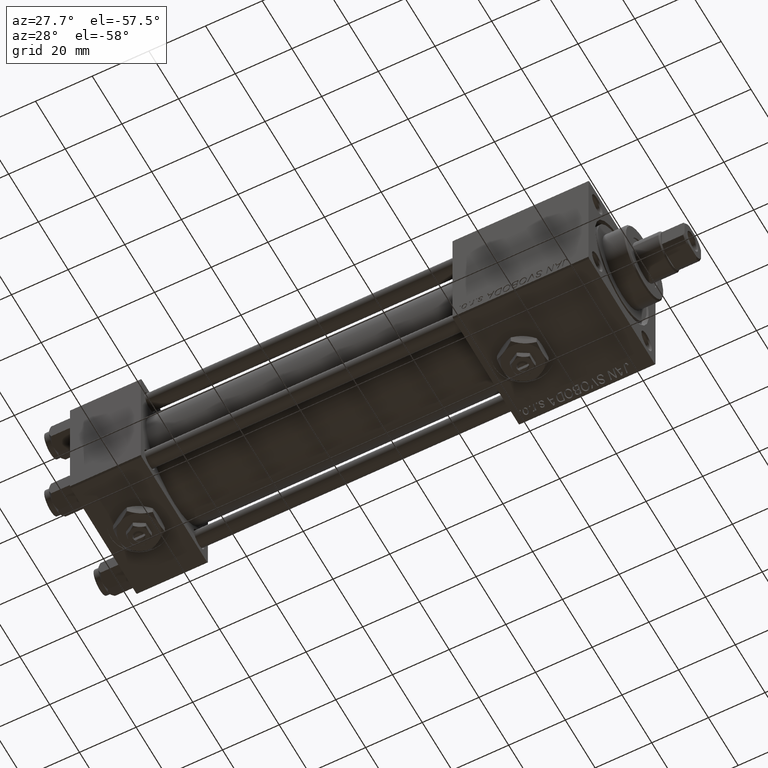
[diagram: clean part render]
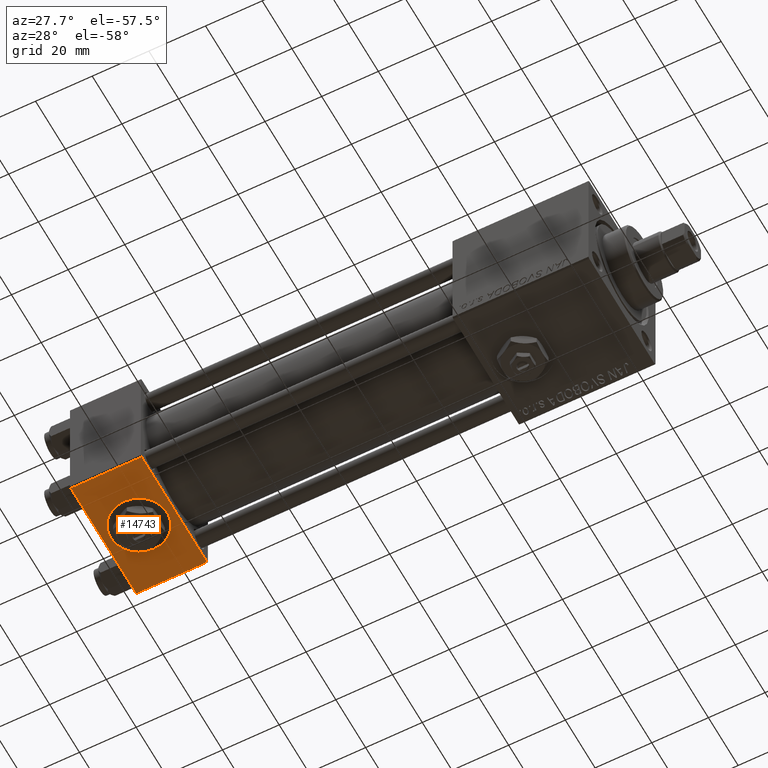
[diagram: same view with one face highlighted and labeled with its STEP entity id]
A machine part, auxiliary view. The second image highlights one B-rep face of the part: STEP entity #14743.
In plain terms, the highlighted planar face has unit normal (0, 0, -1).
Its self-contained STEP definition (entity closure, byte-faithful):
#96 = VERTEX_POINT ( 'NONE', #29479 ) ;
#1832 = DIRECTION ( 'NONE',  ( 0.000000000000000000, -1.734723475976806848E-16, -1.000000000000000000 ) ) ;
#1985 = DIRECTION ( 'NONE',  ( 0.000000000000000000, 2.312964634635742957E-16, -1.000000000000000000 ) ) ;
#4745 = DIRECTION ( 'NONE',  ( 0.000000000000000000, -1.000000000000000000, -2.312964634635742957E-16 ) ) ;
#5355 = ORIENTED_EDGE ( 'NONE', *, *, #8865, .F. ) ;
#5787 = CARTESIAN_POINT ( 'NONE',  ( 12.50000000000000178, 3.566060716959379104E-15, -22.50000000000000000 ) ) ;
#5894 = EDGE_LOOP ( 'NONE', ( #6714, #41633, #34735, #12219 ) ) ;
#5938 = FACE_OUTER_BOUND ( 'NONE', #5894, .T. ) ;
#6673 = CARTESIAN_POINT ( 'NONE',  ( 25.00000000000000000, -21.99999999999997158, -22.50000000000000711 ) ) ;
#6714 = ORIENTED_EDGE ( 'NONE', *, *, #19933, .F. ) ;
#6991 = DIRECTION ( 'NONE',  ( 0.000000000000000000, 1.000000000000000000, 2.312964634635742957E-16 ) ) ;
#8098 = CARTESIAN_POINT ( 'NONE',  ( 0.000000000000000000, 21.99999999999999289, -22.49999999999999645 ) ) ;
#8865 = EDGE_CURVE ( 'NONE', #18137, #46478, #11472, .T. ) ;
#10084 = CARTESIAN_POINT ( 'NONE',  ( 25.00000000000000000, 21.99999999999999289, -22.49999999999999645 ) ) ;
#10412 = PLANE ( 'NONE',  #48773 ) ;
#10759 = VECTOR ( 'NONE', #43990, 1000.000000000000000 ) ;
#10932 = CARTESIAN_POINT ( 'NONE',  ( 25.00000000000000000, 22.50000000000000000, -22.49999999999999645 ) ) ;
#11472 = CIRCLE ( 'NONE', #19920, 10.00000000000000178 ) ;
#12219 = ORIENTED_EDGE ( 'NONE', *, *, #12557, .T. ) ;
#12557 = EDGE_CURVE ( 'NONE', #24839, #96, #13047, .T. ) ;
#13047 = LINE ( 'NONE', #40296, #10759 ) ;
#13815 = VERTEX_POINT ( 'NONE', #10084 ) ;
#14743 = ADVANCED_FACE ( 'NONE', ( #34713, #5938 ), #10412, .T. ) ;
#16134 = ORIENTED_EDGE ( 'NONE', *, *, #22496, .F. ) ;
#17909 = DIRECTION ( 'NONE',  ( 0.000000000000000000, 1.000000000000000000, 0.000000000000000000 ) ) ;
#18137 = VERTEX_POINT ( 'NONE', #39237 ) ;
#19920 = AXIS2_PLACEMENT_3D ( 'NONE', #37890, #50817, #42121 ) ;
#19933 = EDGE_CURVE ( 'NONE', #26747, #96, #33785, .T. ) ;
#22464 = EDGE_CURVE ( 'NONE', #13815, #24839, #30602, .T. ) ;
#22496 = EDGE_CURVE ( 'NONE', #46478, #18137, #52027, .T. ) ;
#24839 = VERTEX_POINT ( 'NONE', #6673 ) ;
#25432 = CARTESIAN_POINT ( 'NONE',  ( 25.00000000000000000, 21.99999999999999289, -22.49999999999999645 ) ) ;
#26747 = VERTEX_POINT ( 'NONE', #8098 ) ;
#29479 = CARTESIAN_POINT ( 'NONE',  ( 0.000000000000000000, -21.99999999999997158, -22.50000000000000711 ) ) ;
#30602 = LINE ( 'NONE', #34552, #36016 ) ;
#31802 = AXIS2_PLACEMENT_3D ( 'NONE', #5787, #1832, #17909 ) ;
#33785 = LINE ( 'NONE', #45150, #46981 ) ;
#34389 = DIRECTION ( 'NONE',  ( 1.000000000000000000, 0.000000000000000000, 0.000000000000000000 ) ) ;
#34552 = CARTESIAN_POINT ( 'NONE',  ( 25.00000000000000000, 22.50000000000000000, -22.49999999999999645 ) ) ;
#34713 = FACE_BOUND ( 'NONE', #44346, .T. ) ;
#34735 = ORIENTED_EDGE ( 'NONE', *, *, #22464, .T. ) ;
#36016 = VECTOR ( 'NONE', #38517, 1000.000000000000000 ) ;
#37890 = CARTESIAN_POINT ( 'NONE',  ( 12.50000000000000178, 3.566060716959379104E-15, -22.50000000000000000 ) ) ;
#38104 = CARTESIAN_POINT ( 'NONE',  ( 12.50000000000000355, -9.999999999999998224, -22.50000000000000000 ) ) ;
#38517 = DIRECTION ( 'NONE',  ( 0.000000000000000000, -1.000000000000000000, -2.312964634635742957E-16 ) ) ;
#38618 = LINE ( 'NONE', #25432, #47158 ) ;
#39237 = CARTESIAN_POINT ( 'NONE',  ( 12.50000000000000178, 10.00000000000000533, -22.50000000000000000 ) ) ;
#40296 = CARTESIAN_POINT ( 'NONE',  ( 0.000000000000000000, -21.99999999999998579, -22.50000000000000711 ) ) ;
#41633 = ORIENTED_EDGE ( 'NONE', *, *, #46437, .T. ) ;
#42121 = DIRECTION ( 'NONE',  ( 0.000000000000000000, 1.000000000000000000, 0.000000000000000000 ) ) ;
#43990 = DIRECTION ( 'NONE',  ( -1.000000000000000000, 0.000000000000000000, 0.000000000000000000 ) ) ;
#44346 = EDGE_LOOP ( 'NONE', ( #5355, #16134 ) ) ;
#45150 = CARTESIAN_POINT ( 'NONE',  ( 0.000000000000000000, 22.50000000000000000, -22.49999999999999645 ) ) ;
#46437 = EDGE_CURVE ( 'NONE', #26747, #13815, #38618, .T. ) ;
#46478 = VERTEX_POINT ( 'NONE', #38104 ) ;
#46981 = VECTOR ( 'NONE', #4745, 1000.000000000000000 ) ;
#47158 = VECTOR ( 'NONE', #34389, 1000.000000000000000 ) ;
#48773 = AXIS2_PLACEMENT_3D ( 'NONE', #10932, #1985, #6991 ) ;
#50817 = DIRECTION ( 'NONE',  ( 0.000000000000000000, -1.734723475976806848E-16, -1.000000000000000000 ) ) ;
#52027 = CIRCLE ( 'NONE', #31802, 10.00000000000000178 ) ;